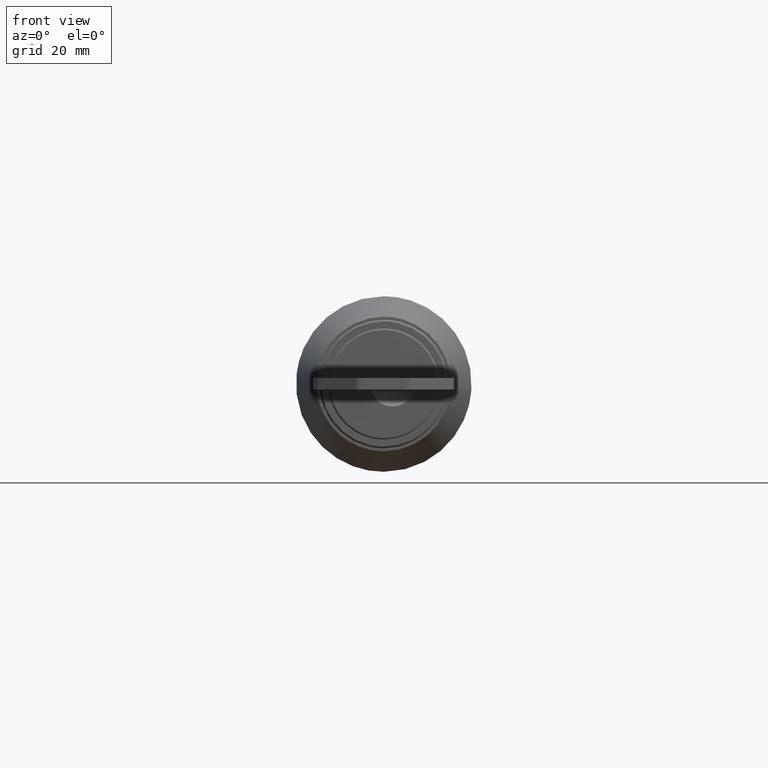
[diagram: clean part render]
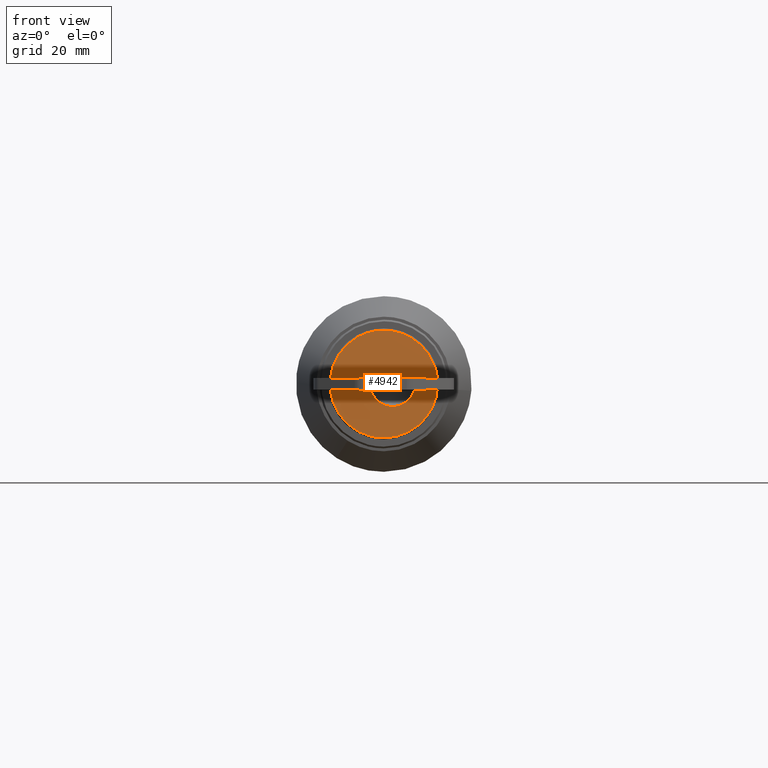
[diagram: same view with one face highlighted and labeled with its STEP entity id]
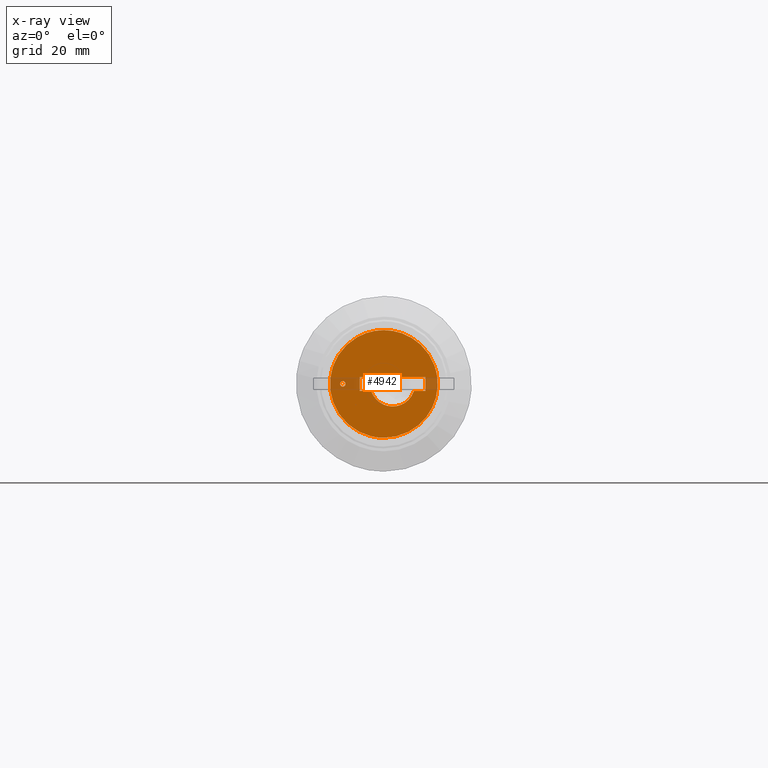
[diagram: x-ray of the same camera — body ghosted, the highlighted face saturated]
A machine part, front view. The second image highlights one B-rep face of the part: STEP entity #4942.
The next image is the same camera in x-ray: the body ghosted, the highlighted face saturated — about 6% of this face is hidden behind the body in this view.
In plain terms, the highlighted face is a freeform B-spline surface patch.
Its self-contained STEP definition (entity closure, byte-faithful):
#3203=CARTESIAN_POINT('',(-0.199999999999978,6.534526784543310,-0.055328547988322));
#3204=VERTEX_POINT('',#3203);
#3210=CARTESIAN_POINT('',(-0.199999999999978,7.0,0.468749999728104));
#3211=VERTEX_POINT('',#3210);
#3212=CARTESIAN_POINT('',(-0.199999999999978,6.534526784543310,-0.055328547988322));
#3213=CARTESIAN_POINT('',(-0.199999999999978,6.531250000000000,-0.027761306582136));
#3214=CARTESIAN_POINT('',(-0.199999999999978,6.531250000000001,-2.718963E-010));
#3215=CARTESIAN_POINT('',(-0.199999999999978,6.531250000000002,0.468749999728104));
#3216=CARTESIAN_POINT('',(-0.199999999999978,7.0,0.468749999728104));
#3224=(BOUNDED_CURVE()B_SPLINE_CURVE(2,(#3212,#3213,#3214,#3215,#3216),.UNSPECIFIED.,.F.,.U.)B_SPLINE_CURVE_WITH_KNOTS((3,2,3),(0.229562473355113,0.250000000000000,0.500000000000000),.UNSPECIFIED.)CURVE()GEOMETRIC_REPRESENTATION_ITEM()RATIONAL_B_SPLINE_CURVE((0.956026753873237,0.976055948145573,1.0,0.707106781186547,1.0))REPRESENTATION_ITEM(''));
#3225=EDGE_CURVE('',#3204,#3211,#3224,.T.);
#3227=CARTESIAN_POINT('',(-0.199999999999978,7.467875686741575,0.028616502940416));
#3228=VERTEX_POINT('',#3227);
#3229=CARTESIAN_POINT('',(-0.199999999999978,7.0,0.468749999728104));
#3230=CARTESIAN_POINT('',(-0.199999999999978,7.440955968285411,0.468749999728104));
#3231=CARTESIAN_POINT('',(-0.199999999999978,7.467875686741575,0.028616502940416));
#3239=(BOUNDED_CURVE()B_SPLINE_CURVE(2,(#3229,#3230,#3231),.UNSPECIFIED.,.F.,.U.)B_SPLINE_CURVE_WITH_KNOTS((3,3),(0.500000000000000,0.739332962016752),.UNSPECIFIED.)CURVE()GEOMETRIC_REPRESENTATION_ITEM()RATIONAL_B_SPLINE_CURVE((1.0,0.719603993547023,0.976072041190520))REPRESENTATION_ITEM(''));
#3240=EDGE_CURVE('',#3211,#3228,#3239,.T.);
#3314=CARTESIAN_POINT('',(-0.199999999999978,7.0,-0.468750000271896));
#3315=VERTEX_POINT('',#3314);
#3316=CARTESIAN_POINT('',(-0.199999999999978,7.467875686741575,0.028616502940416));
#3317=CARTESIAN_POINT('',(-0.199999999999978,7.468750000000000,0.014321607830522));
#3318=CARTESIAN_POINT('',(-0.199999999999978,7.468750000000000,-2.718963E-010));
#3319=CARTESIAN_POINT('',(-0.199999999999978,7.468749999999999,-0.468750000271896));
#3320=CARTESIAN_POINT('',(-0.199999999999978,7.0,-0.468750000271896));
#3328=(BOUNDED_CURVE()B_SPLINE_CURVE(2,(#3316,#3317,#3318,#3319,#3320),.UNSPECIFIED.,.F.,.U.)B_SPLINE_CURVE_WITH_KNOTS((3,2,3),(0.739332962016751,0.750000000000000,1.0),.UNSPECIFIED.)CURVE()GEOMETRIC_REPRESENTATION_ITEM()RATIONAL_B_SPLINE_CURVE((0.976072041190518,0.987502787639523,1.0,0.707106781186547,1.0))REPRESENTATION_ITEM(''));
#3329=EDGE_CURVE('',#3228,#3315,#3328,.T.);
#3331=CARTESIAN_POINT('',(-0.199999999999978,7.0,-0.468750000271896));
#3332=CARTESIAN_POINT('',(-0.199999999999978,6.583668191358544,-0.468750000271896));
#3333=CARTESIAN_POINT('',(-0.199999999999978,6.534526784543310,-0.055328547988322));
#3341=(BOUNDED_CURVE()B_SPLINE_CURVE(2,(#3331,#3332,#3333),.UNSPECIFIED.,.F.,.U.)B_SPLINE_CURVE_WITH_KNOTS((3,3),(0.0,0.229562473355113),.UNSPECIFIED.)CURVE()GEOMETRIC_REPRESENTATION_ITEM()RATIONAL_B_SPLINE_CURVE((1.0,0.731050833040974,0.956026753873237))REPRESENTATION_ITEM(''));
#3342=EDGE_CURVE('',#3315,#3204,#3341,.T.);
#4397=CARTESIAN_POINT('',(-0.199999999999991,4.529144513176113,8.007924206516947));
#4398=VERTEX_POINT('',#4397);
#4399=CARTESIAN_POINT('',(-0.199999999999991,-3.595346E-012,-9.199999999735310));
#4400=VERTEX_POINT('',#4399);
#4401=CARTESIAN_POINT('',(-0.199999999999991,4.529144513176113,8.007924206516947));
#4402=CARTESIAN_POINT('',(-0.199999999999992,9.199999999731714,5.366168488654304));
#4403=CARTESIAN_POINT('',(-0.199999999999991,9.199999999731714,0.0));
#4404=CARTESIAN_POINT('',(-0.199999999999992,9.199999999731714,-9.199999999735310));
#4405=CARTESIAN_POINT('',(-0.199999999999991,-3.595346E-012,-9.199999999735310));
#4413=(BOUNDED_CURVE()B_SPLINE_CURVE(2,(#4401,#4402,#4403,#4404,#4405),.UNSPECIFIED.,.F.,.U.)B_SPLINE_CURVE_WITH_KNOTS((3,2,3),(0.083907880020783,0.250000000000000,0.500000000000000),.UNSPECIFIED.)CURVE()GEOMETRIC_REPRESENTATION_ITEM()RATIONAL_B_SPLINE_CURVE((0.869379581132686,0.805410977438949,1.0,0.707106781186547,1.0))REPRESENTATION_ITEM(''));
#4414=EDGE_CURVE('',#4398,#4400,#4413,.T.);
#4433=CARTESIAN_POINT('',(-0.199999999999991,-8.675512939755365,3.061939813115789));
#4434=VERTEX_POINT('',#4433);
#4448=CARTESIAN_POINT('',(-0.199999999999991,-3.595346E-012,-9.199999999735310));
#4449=CARTESIAN_POINT('',(-0.199999999999992,-9.199999999738907,-9.199999999735310));
#4450=CARTESIAN_POINT('',(-0.199999999999991,-9.199999999738907,0.0));
#4451=CARTESIAN_POINT('',(-0.199999999999991,-9.199999999738907,1.575890233750906));
#4452=CARTESIAN_POINT('',(-0.199999999999991,-8.675512939755365,3.061939813115789));
#4460=(BOUNDED_CURVE()B_SPLINE_CURVE(2,(#4448,#4449,#4450,#4451,#4452),.UNSPECIFIED.,.F.,.U.)B_SPLINE_CURVE_WITH_KNOTS((3,2,3),(0.500000000000000,0.750000000000000,0.806548785519789),.UNSPECIFIED.)CURVE()GEOMETRIC_REPRESENTATION_ITEM()RATIONAL_B_SPLINE_CURVE((1.0,0.707106781186547,1.0,0.933748976756470,0.897469272743859))REPRESENTATION_ITEM(''));
#4461=EDGE_CURVE('',#4400,#4434,#4460,.T.);
#4489=CARTESIAN_POINT('',(-0.199999999999991,-3.595346E-012,9.199999999735310));
#4490=VERTEX_POINT('',#4489);
#4491=CARTESIAN_POINT('',(-0.199999999999991,-3.595346E-012,9.199999999735310));
#4492=CARTESIAN_POINT('',(-0.199999999999992,2.421450083389607,9.199999999735310));
#4493=CARTESIAN_POINT('',(-0.199999999999991,4.529144513176113,8.007924206516947));
#4501=(BOUNDED_CURVE()B_SPLINE_CURVE(2,(#4491,#4492,#4493),.UNSPECIFIED.,.F.,.U.)B_SPLINE_CURVE_WITH_KNOTS((3,3),(0.0,0.083907880020783),.UNSPECIFIED.)CURVE()GEOMETRIC_REPRESENTATION_ITEM()RATIONAL_B_SPLINE_CURVE((1.0,0.901695803747599,0.869379581132686))REPRESENTATION_ITEM(''));
#4502=EDGE_CURVE('',#4490,#4398,#4501,.T.);
#4504=CARTESIAN_POINT('',(-0.199999999999991,-8.675512939755365,3.061939813115789));
#4505=CARTESIAN_POINT('',(-0.199999999999992,-6.509142940887699,9.199999999735310));
#4506=CARTESIAN_POINT('',(-0.199999999999991,-3.595346E-012,9.199999999735310));
#4514=(BOUNDED_CURVE()B_SPLINE_CURVE(2,(#4504,#4505,#4506),.UNSPECIFIED.,.F.,.U.)B_SPLINE_CURVE_WITH_KNOTS((3,3),(0.806548785519788,1.0),.UNSPECIFIED.)CURVE()GEOMETRIC_REPRESENTATION_ITEM()RATIONAL_B_SPLINE_CURVE((0.897469272743860,0.773357804430077,1.0))REPRESENTATION_ITEM(''));
#4515=EDGE_CURVE('',#4434,#4490,#4514,.T.);
#4589=CARTESIAN_POINT('',(-0.199999999999988,-5.153518457501760,-1.200000000272000));
#4590=VERTEX_POINT('',#4589);
#4605=CARTESIAN_POINT('',(-0.199999999999988,2.153518457501755,-1.200000000272000));
#4606=VERTEX_POINT('',#4605);
#4620=CARTESIAN_POINT('',(-0.199999999999990,-5.153518457501757,-1.200000000271998));
#4621=CARTESIAN_POINT('',(-0.199999999999990,-4.284588674628579,-3.845542500271896));
#4622=CARTESIAN_POINT('',(-0.199999999999990,-1.500000000000000,-3.845542500271896));
#4623=CARTESIAN_POINT('',(-0.199999999999990,1.284588674628576,-3.845542500271896));
#4624=CARTESIAN_POINT('',(-0.199999999999990,2.153518457501755,-1.200000000272000));
#4632=(BOUNDED_CURVE()B_SPLINE_CURVE(2,(#4620,#4621,#4622,#4623,#4624),.UNSPECIFIED.,.F.,.U.)B_SPLINE_CURVE_WITH_KNOTS((3,2,3),(0.0,0.500000000000000,1.0),.UNSPECIFIED.)CURVE()GEOMETRIC_REPRESENTATION_ITEM()RATIONAL_B_SPLINE_CURVE((1.0,0.809953579004375,1.0,0.809953579004375,1.0))REPRESENTATION_ITEM(''));
#4633=EDGE_CURVE('',#4590,#4606,#4632,.T.);
#4687=CARTESIAN_POINT('',(-0.199999999999978,-7.100000000000001,-1.200000000272000));
#4688=VERTEX_POINT('',#4687);
#4689=CARTESIAN_POINT('',(-0.199999999999988,-5.153518457501760,-1.200000000272000));
#4690=CARTESIAN_POINT('',(-0.199999999999978,-7.100000000000001,-1.200000000272000));
#4691=QUASI_UNIFORM_CURVE('',1,(#4689,#4690),.UNSPECIFIED.,.F.,.U.);
#4692=EDGE_CURVE('',#4590,#4688,#4691,.T.);
#4707=CARTESIAN_POINT('',(-0.199999999999978,4.100000000000001,1.199999999727992));
#4708=VERTEX_POINT('',#4707);
#4709=CARTESIAN_POINT('',(-0.199999999999990,4.100000000000001,-1.200000000272000));
#4710=VERTEX_POINT('',#4709);
#4711=CARTESIAN_POINT('',(-0.199999999999978,4.100000000000001,1.199999999727992));
#4712=CARTESIAN_POINT('',(-0.199999999999990,4.100000000000001,-1.200000000272000));
#4713=QUASI_UNIFORM_CURVE('',1,(#4711,#4712),.UNSPECIFIED.,.F.,.U.);
#4714=EDGE_CURVE('',#4708,#4710,#4713,.T.);
#4735=CARTESIAN_POINT('',(-0.199999999999978,-7.100000000000001,1.199999999727992));
#4736=VERTEX_POINT('',#4735);
#4737=CARTESIAN_POINT('',(-0.199999999999978,-7.100000000000001,1.199999999727992));
#4738=CARTESIAN_POINT('',(-0.199999999999978,4.100000000000001,1.199999999727992));
#4739=QUASI_UNIFORM_CURVE('',1,(#4737,#4738),.UNSPECIFIED.,.F.,.U.);
#4740=EDGE_CURVE('',#4736,#4708,#4739,.T.);
#4757=CARTESIAN_POINT('',(-0.199999999999978,-7.100000000000001,-1.200000000272000));
#4758=CARTESIAN_POINT('',(-0.199999999999978,-7.100000000000001,1.199999999727992));
#4759=QUASI_UNIFORM_CURVE('',1,(#4757,#4758),.UNSPECIFIED.,.F.,.U.);
#4760=EDGE_CURVE('',#4688,#4736,#4759,.T.);
#4913=CARTESIAN_POINT('',(-0.199999999999990,-10.116954548297700,10.119079791320059));
#4914=CARTESIAN_POINT('',(-0.199999999999990,-10.116954548297700,-10.119080449355341));
#4915=CARTESIAN_POINT('',(-0.199999999999990,10.118843243520290,10.119079791320059));
#4916=CARTESIAN_POINT('',(-0.199999999999990,10.118843243520290,-10.119080449355341));
#4917=B_SPLINE_SURFACE_WITH_KNOTS('',1,1,((#4913,#4915),(#4914,#4916)),.UNSPECIFIED.,.F.,.F.,.U.,(2,2),(2,2),(0.0,20.238160240675398),(0.0,20.235797791818001),.UNSPECIFIED.);
#4918=ORIENTED_EDGE('',*,*,#4502,.T.);
#4919=ORIENTED_EDGE('',*,*,#4414,.T.);
#4920=ORIENTED_EDGE('',*,*,#4461,.T.);
#4921=ORIENTED_EDGE('',*,*,#4515,.T.);
#4922=EDGE_LOOP('',(#4918,#4919,#4920,#4921));
#4923=FACE_OUTER_BOUND('',#4922,.T.);
#4924=CARTESIAN_POINT('',(-0.199999999999990,4.100000000000001,-1.200000000272000));
#4925=CARTESIAN_POINT('',(-0.199999999999988,2.153518457501755,-1.200000000272000));
#4926=QUASI_UNIFORM_CURVE('',1,(#4924,#4925),.UNSPECIFIED.,.F.,.U.);
#4927=EDGE_CURVE('',#4710,#4606,#4926,.T.);
#4928=ORIENTED_EDGE('',*,*,#4927,.F.);
#4929=ORIENTED_EDGE('',*,*,#4714,.F.);
#4930=ORIENTED_EDGE('',*,*,#4740,.F.);
#4931=ORIENTED_EDGE('',*,*,#4760,.F.);
#4932=ORIENTED_EDGE('',*,*,#4692,.F.);
#4933=ORIENTED_EDGE('',*,*,#4633,.T.);
#4934=EDGE_LOOP('',(#4928,#4929,#4930,#4931,#4932,#4933));
#4935=FACE_BOUND('',#4934,.T.);
#4936=ORIENTED_EDGE('',*,*,#3240,.F.);
#4937=ORIENTED_EDGE('',*,*,#3225,.F.);
#4938=ORIENTED_EDGE('',*,*,#3342,.F.);
#4939=ORIENTED_EDGE('',*,*,#3329,.F.);
#4940=EDGE_LOOP('',(#4936,#4937,#4938,#4939));
#4941=FACE_BOUND('',#4940,.T.);
#4942=ADVANCED_FACE('',(#4923,#4935,#4941),#4917,.F.);